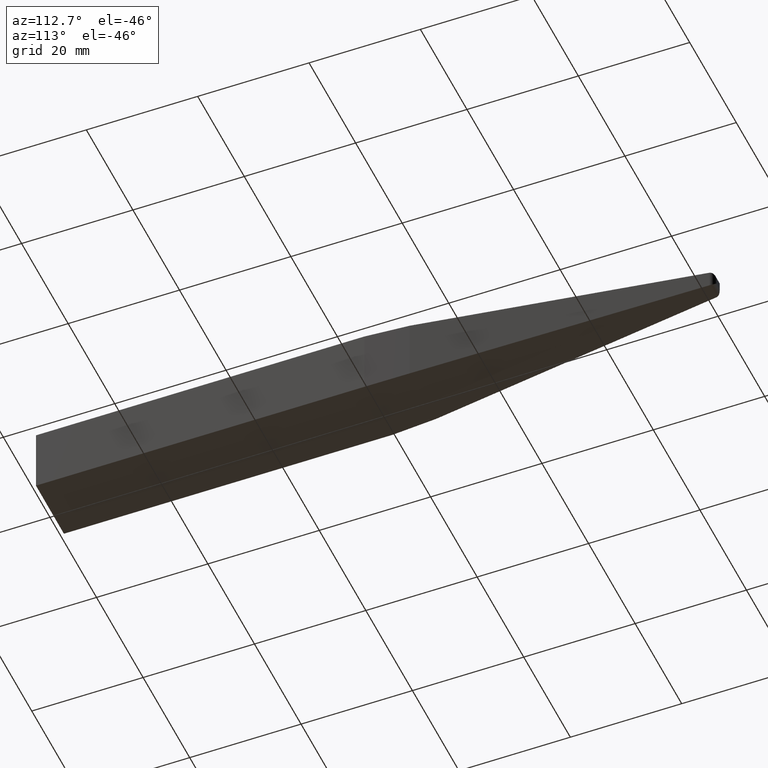
[diagram: clean part render]
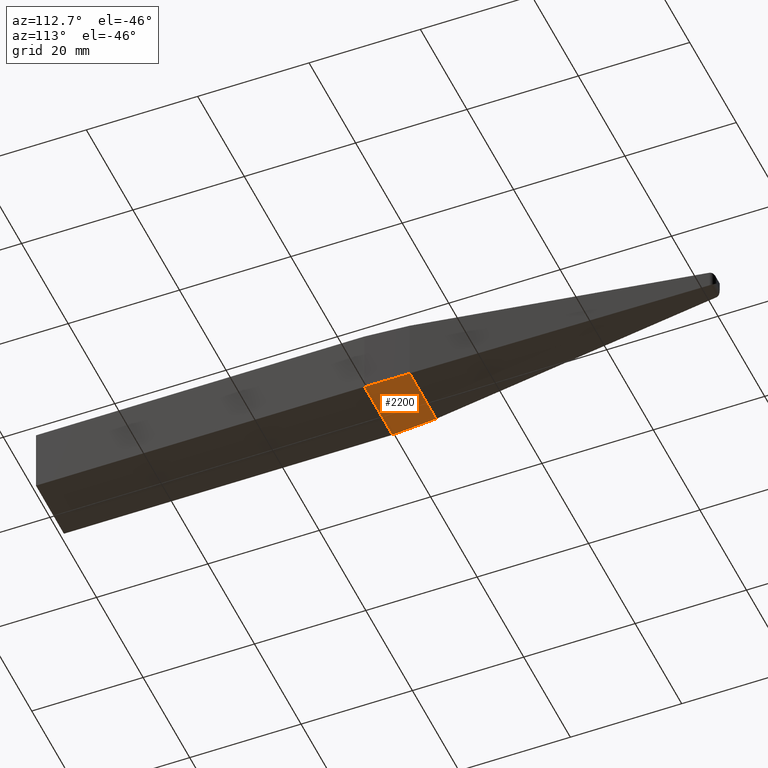
[diagram: same view with one face highlighted and labeled with its STEP entity id]
A machine part, auxiliary view. The second image highlights one B-rep face of the part: STEP entity #2200.
In plain terms, the highlighted cylindrical surface (partial cylindrical patch) has radius 100 mm, axis along (1, 0, -0).
Its self-contained STEP definition (entity closure, byte-faithful):
#127 = VERTEX_POINT ( 'NONE', #5703 ) ;
#1456 = DIRECTION ( 'NONE',  ( 1.000000000000000000, 0.000000000000000000, -0.000000000000000000 ) ) ;
#1588 = CARTESIAN_POINT ( 'NONE',  ( -6.000000000000000000, 58.99328473552503738, -6.000000000000000000 ) ) ;
#1614 = EDGE_CURVE ( 'NONE', #4689, #4151, #1851, .T. ) ;
#1851 = LINE ( 'NONE', #7917, #3956 ) ;
#1910 = CARTESIAN_POINT ( 'NONE',  ( 6.000000000000000888, 58.99328473552503027, -6.000000000000000000 ) ) ;
#2200 = ADVANCED_FACE ( 'NONE', ( #3561 ), #4746, .T. ) ;
#2469 = LINE ( 'NONE', #8119, #5805 ) ;
#2792 = CARTESIAN_POINT ( 'NONE',  ( 5.999999999999991118, 61.66371402420576686, -5.999999999999991118 ) ) ;
#2828 = EDGE_LOOP ( 'NONE', ( #7865, #7109, #4434, #5921 ) ) ;
#3163 = CARTESIAN_POINT ( 'NONE',  ( -6.000000000000004441, 61.66371402420572423, -6.000000000000009770 ) ) ;
#3181 = EDGE_CURVE ( 'NONE', #127, #4151, #7244, .T. ) ;
#3561 = FACE_OUTER_BOUND ( 'NONE', #2828, .T. ) ;
#3671 = DIRECTION ( 'NONE',  ( -1.000000000000000000, -0.000000000000000000, -0.000000000000000000 ) ) ;
#3893 = EDGE_CURVE ( 'NONE', #127, #4116, #2469, .T. ) ;
#3956 = VECTOR ( 'NONE', #3671, 1000.000000000000000 ) ;
#4116 = VERTEX_POINT ( 'NONE', #7628 ) ;
#4151 = VERTEX_POINT ( 'NONE', #6695 ) ;
#4434 = ORIENTED_EDGE ( 'NONE', *, *, #10546, .T. ) ;
#4523 = CARTESIAN_POINT ( 'NONE',  ( -6.000000000000000000, 58.99328473552517238, 94.00000000000000000 ) ) ;
#4689 = VERTEX_POINT ( 'NONE', #10566 ) ;
#4727 = CARTESIAN_POINT ( 'NONE',  ( -5.893089283636937736, 64.33200236780179182, -5.893089283636946618 ) ) ;
#4746 = CYLINDRICAL_SURFACE ( 'NONE', #8880, 100.0000000000000000 ) ;
#5270 = CARTESIAN_POINT ( 'NONE',  ( 5.679439276511701884, 66.99387130903450327, -5.679439276511703660 ) ) ;
#5703 = CARTESIAN_POINT ( 'NONE',  ( -6.000000000000000000, 58.99328473552503738, -6.000000000000000000 ) ) ;
#5805 = VECTOR ( 'NONE', #1456, 1000.000000000000000 ) ;
#5921 = ORIENTED_EDGE ( 'NONE', *, *, #3893, .F. ) ;
#6163 = DIRECTION ( 'NONE',  ( 0.000000000000000000, 0.000000000000000000, -1.000000000000000000 ) ) ;
#6695 = CARTESIAN_POINT ( 'NONE',  ( -5.679439276511701884, 66.99387130903450327, -5.679439276511703660 ) ) ;
#7109 = ORIENTED_EDGE ( 'NONE', *, *, #1614, .F. ) ;
#7244 =( BOUNDED_CURVE ( )  B_SPLINE_CURVE ( 3, ( #1588, #3163, #4727, #10798 ),
 .UNSPECIFIED., .F., .F. ) 
 B_SPLINE_CURVE_WITH_KNOTS ( ( 4, 4 ),
 ( 3.141592653589793116, 3.221684118220869752 ),
 .UNSPECIFIED. ) 
 CURVE ( )  GEOMETRIC_REPRESENTATION_ITEM ( )  RATIONAL_B_SPLINE_CURVE ( ( 1.000000000000000000, 0.9994655178741622681, 0.9994655178741622681, 1.000000000000000000 ) ) 
 REPRESENTATION_ITEM ( '' )  );
#7628 = CARTESIAN_POINT ( 'NONE',  ( 6.000000000000000888, 58.99328473552503027, -6.000000000000000000 ) ) ;
#7865 = ORIENTED_EDGE ( 'NONE', *, *, #3181, .T. ) ;
#7897 = DIRECTION ( 'NONE',  ( 1.000000000000000000, 0.000000000000000000, -0.000000000000000000 ) ) ;
#7917 = CARTESIAN_POINT ( 'NONE',  ( -6.000000000000000000, 66.99387130903467380, -5.679439276511691226 ) ) ;
#8119 = CARTESIAN_POINT ( 'NONE',  ( -6.000000000000000000, 58.99328473552517238, -6.000000000000000000 ) ) ;
#8785 =( BOUNDED_CURVE ( )  B_SPLINE_CURVE ( 3, ( #5270, #8793, #2792, #1910 ),
 .UNSPECIFIED., .F., .T. ) 
 B_SPLINE_CURVE_WITH_KNOTS ( ( 4, 4 ),
 ( 3.061501188958717812, 3.141592653589793560 ),
 .UNSPECIFIED. ) 
 CURVE ( )  GEOMETRIC_REPRESENTATION_ITEM ( )  RATIONAL_B_SPLINE_CURVE ( ( 1.000000000000000000, 0.9994655178741622681, 0.9994655178741622681, 1.000000000000000000 ) ) 
 REPRESENTATION_ITEM ( '' )  );
#8793 = CARTESIAN_POINT ( 'NONE',  ( 5.893089283636932407, 64.33200236780180603, -5.893089283636932407 ) ) ;
#8880 = AXIS2_PLACEMENT_3D ( 'NONE', #4523, #7897, #6163 ) ;
#10546 = EDGE_CURVE ( 'NONE', #4689, #4116, #8785, .T. ) ;
#10566 = CARTESIAN_POINT ( 'NONE',  ( 5.679439276511701884, 66.99387130903450327, -5.679439276511703660 ) ) ;
#10798 = CARTESIAN_POINT ( 'NONE',  ( -5.679439276511701884, 66.99387130903450327, -5.679439276511703660 ) ) ;